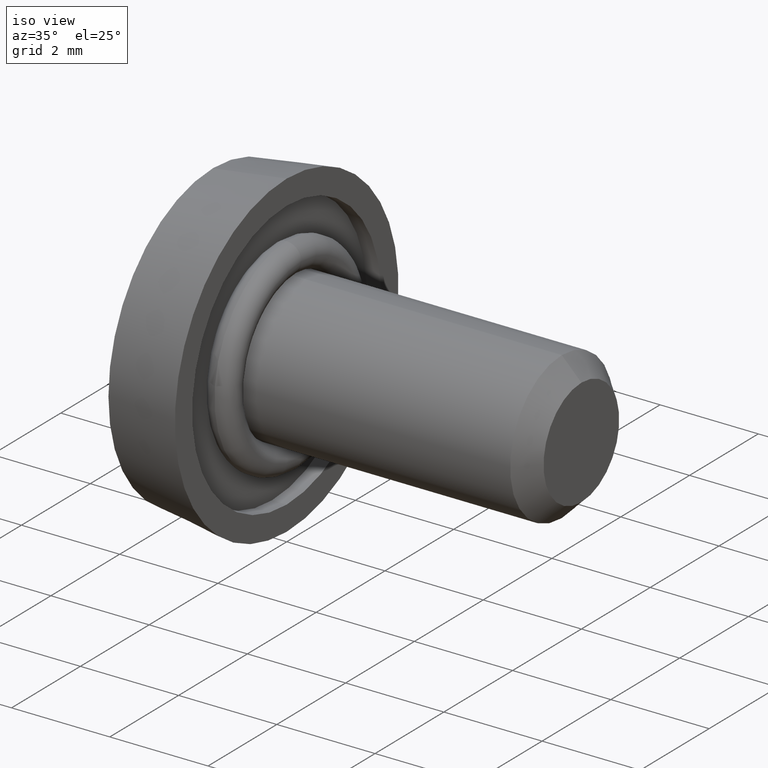
[diagram: clean part render]
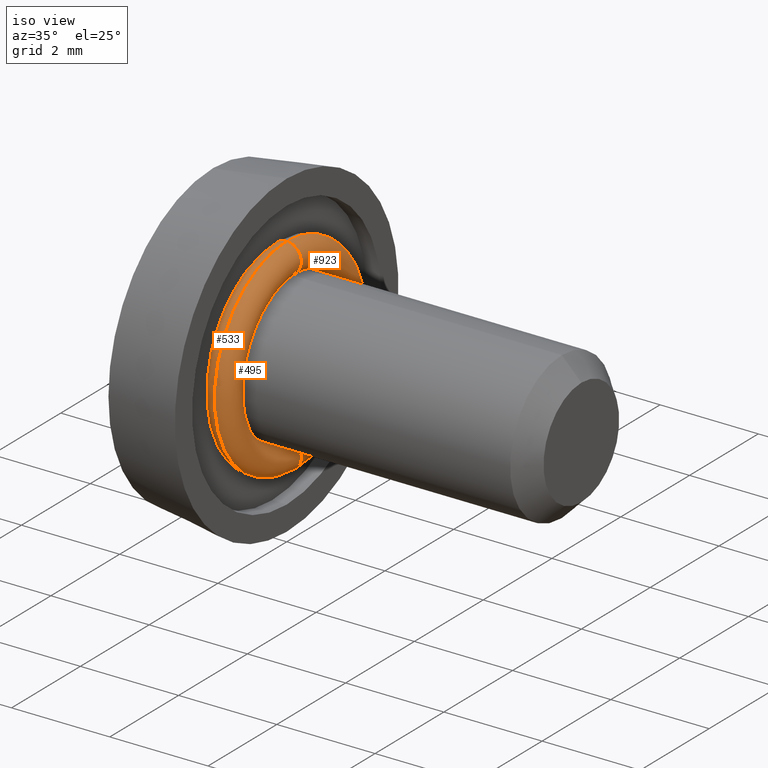
[diagram: same view with one multi-face feature highlighted, each face labeled with its STEP entity id]
A machine part, iso view. The highlighted faces form ONE feature: a constant-radius fillet chain: 3 tangent blend faces with common blend radius 0.3 mm. The faces share edges in the B-rep.
Their STEP definitions:
[1] entity #923 (Torus):
#16 = DIRECTION ( 'NONE',  ( 0.0000000000000000000, 0.0000000000000000000, -1.000000000000000000 ) ) ;
#51 = EDGE_CURVE ( 'NONE', #193, #249, #1197, .T. ) ;
#58 = ORIENTED_EDGE ( 'NONE', *, *, #455, .F. ) ;
#81 = CARTESIAN_POINT ( 'NONE',  ( 0.0000000000000000000, 0.0000000000000000000, -1.800000000000000000 ) ) ;
#163 = CARTESIAN_POINT ( 'NONE',  ( -3.673940397442058300E-017, 0.0000000000000000000, 0.0000000000000000000 ) ) ;
#189 = VERTEX_POINT ( 'NONE', #278 ) ;
#193 = VERTEX_POINT ( 'NONE', #744 ) ;
#205 = DIRECTION ( 'NONE',  ( 1.000000000000000000, -0.0000000000000000000, -0.0000000000000000000 ) ) ;
#235 = AXIS2_PLACEMENT_3D ( 'NONE', #1188, #205, #16 ) ;
#249 = VERTEX_POINT ( 'NONE', #286 ) ;
#278 = CARTESIAN_POINT ( 'NONE',  ( 0.0000000000000000000, 0.0000000000000000000, -2.100000000000000100 ) ) ;
#286 = CARTESIAN_POINT ( 'NONE',  ( -3.673940397442057600E-017, 1.836970198721029700E-016, 1.500000000000000000 ) ) ;
#332 = DIRECTION ( 'NONE',  ( 0.0000000000000000000, 1.224646799147353200E-016, 1.000000000000000000 ) ) ;
#348 = ORIENTED_EDGE ( 'NONE', *, *, #51, .F. ) ;
#455 = EDGE_CURVE ( 'NONE', #189, #193, #782, .T. ) ;
#469 = CIRCLE ( 'NONE', #235, 2.100000000000000100 ) ;
#486 = DIRECTION ( 'NONE',  ( 0.0000000000000000000, 0.0000000000000000000, -1.000000000000000000 ) ) ;
#562 = EDGE_CURVE ( 'NONE', #189, #1091, #469, .T. ) ;
#590 = CIRCLE ( 'NONE', #804, 0.2999999999999999300 ) ;
#623 = ORIENTED_EDGE ( 'NONE', *, *, #1173, .T. ) ;
#693 = DIRECTION ( 'NONE',  ( -0.0000000000000000000, -1.000000000000000000, -0.0000000000000000000 ) ) ;
#696 = EDGE_LOOP ( 'NONE', ( #58, #849, #623, #348 ) ) ;
#719 = CARTESIAN_POINT ( 'NONE',  ( 0.0000000000000000000, 2.571758278209441500E-016, 2.100000000000000100 ) ) ;
#737 = DIRECTION ( 'NONE',  ( 1.000000000000000000, -0.0000000000000000000, -0.0000000000000000000 ) ) ;
#744 = CARTESIAN_POINT ( 'NONE',  ( -3.673940397442057600E-017, 0.0000000000000000000, -1.500000000000000000 ) ) ;
#782 = CIRCLE ( 'NONE', #968, 0.2999999999999999300 ) ;
#788 = FACE_OUTER_BOUND ( 'NONE', #696, .T. ) ;
#804 = AXIS2_PLACEMENT_3D ( 'NONE', #1128, #941, #332 ) ;
#811 = AXIS2_PLACEMENT_3D ( 'NONE', #163, #981, #1126 ) ;
#840 = DIRECTION ( 'NONE',  ( 0.0000000000000000000, 0.0000000000000000000, -1.000000000000000000 ) ) ;
#849 = ORIENTED_EDGE ( 'NONE', *, *, #562, .T. ) ;
#923 = ADVANCED_FACE ( 'NONE', ( #788 ), #1042, .T. ) ;
#941 = DIRECTION ( 'NONE',  ( 0.0000000000000000000, 1.000000000000000000, -1.224646799147353200E-016 ) ) ;
#968 = AXIS2_PLACEMENT_3D ( 'NONE', #81, #693, #486 ) ;
#981 = DIRECTION ( 'NONE',  ( 1.000000000000000000, -0.0000000000000000000, -0.0000000000000000000 ) ) ;
#1042 = TOROIDAL_SURFACE ( 'NONE', #1146, 1.800000000000000000, 0.2999999999999998800 ) ;
#1091 = VERTEX_POINT ( 'NONE', #719 ) ;
#1126 = DIRECTION ( 'NONE',  ( 0.0000000000000000000, 0.0000000000000000000, -1.000000000000000000 ) ) ;
#1128 = CARTESIAN_POINT ( 'NONE',  ( 0.0000000000000000000, 2.204364238465235600E-016, 1.800000000000000000 ) ) ;
#1146 = AXIS2_PLACEMENT_3D ( 'NONE', #1203, #737, #840 ) ;
#1173 = EDGE_CURVE ( 'NONE', #1091, #249, #590, .T. ) ;
#1188 = CARTESIAN_POINT ( 'NONE',  ( 0.0000000000000000000, 0.0000000000000000000, 0.0000000000000000000 ) ) ;
#1197 = CIRCLE ( 'NONE', #811, 1.500000000000000000 ) ;
#1203 = CARTESIAN_POINT ( 'NONE',  ( 0.0000000000000000000, 0.0000000000000000000, 0.0000000000000000000 ) ) ;
[2] entity #495 (Torus):
#78 = AXIS2_PLACEMENT_3D ( 'NONE', #642, #529, #221 ) ;
#81 = CARTESIAN_POINT ( 'NONE',  ( 0.0000000000000000000, 0.0000000000000000000, -1.800000000000000000 ) ) ;
#99 = DIRECTION ( 'NONE',  ( 1.000000000000000000, -0.0000000000000000000, -0.0000000000000000000 ) ) ;
#143 = CARTESIAN_POINT ( 'NONE',  ( 0.0000000000000000000, 0.0000000000000000000, 0.0000000000000000000 ) ) ;
#189 = VERTEX_POINT ( 'NONE', #278 ) ;
#193 = VERTEX_POINT ( 'NONE', #744 ) ;
#221 = DIRECTION ( 'NONE',  ( 0.0000000000000000000, 0.0000000000000000000, -1.000000000000000000 ) ) ;
#242 = TOROIDAL_SURFACE ( 'NONE', #1217, 1.800000000000000000, 0.2999999999999998800 ) ;
#249 = VERTEX_POINT ( 'NONE', #286 ) ;
#278 = CARTESIAN_POINT ( 'NONE',  ( 0.0000000000000000000, 0.0000000000000000000, -2.100000000000000100 ) ) ;
#286 = CARTESIAN_POINT ( 'NONE',  ( -3.673940397442057600E-017, 1.836970198721029700E-016, 1.500000000000000000 ) ) ;
#307 = DIRECTION ( 'NONE',  ( 1.000000000000000000, -0.0000000000000000000, -0.0000000000000000000 ) ) ;
#332 = DIRECTION ( 'NONE',  ( 0.0000000000000000000, 1.224646799147353200E-016, 1.000000000000000000 ) ) ;
#359 = FACE_OUTER_BOUND ( 'NONE', #685, .T. ) ;
#384 = ORIENTED_EDGE ( 'NONE', *, *, #455, .T. ) ;
#455 = EDGE_CURVE ( 'NONE', #189, #193, #782, .T. ) ;
#486 = DIRECTION ( 'NONE',  ( 0.0000000000000000000, 0.0000000000000000000, -1.000000000000000000 ) ) ;
#495 = ADVANCED_FACE ( 'NONE', ( #359 ), #242, .T. ) ;
#502 = ORIENTED_EDGE ( 'NONE', *, *, #823, .F. ) ;
#529 = DIRECTION ( 'NONE',  ( 1.000000000000000000, -0.0000000000000000000, -0.0000000000000000000 ) ) ;
#590 = CIRCLE ( 'NONE', #804, 0.2999999999999999300 ) ;
#642 = CARTESIAN_POINT ( 'NONE',  ( 0.0000000000000000000, 0.0000000000000000000, 0.0000000000000000000 ) ) ;
#667 = CIRCLE ( 'NONE', #78, 2.100000000000000100 ) ;
#675 = ORIENTED_EDGE ( 'NONE', *, *, #1173, .F. ) ;
#685 = EDGE_LOOP ( 'NONE', ( #675, #1182, #384, #502 ) ) ;
#693 = DIRECTION ( 'NONE',  ( -0.0000000000000000000, -1.000000000000000000, -0.0000000000000000000 ) ) ;
#719 = CARTESIAN_POINT ( 'NONE',  ( 0.0000000000000000000, 2.571758278209441500E-016, 2.100000000000000100 ) ) ;
#722 = CIRCLE ( 'NONE', #1170, 1.500000000000000000 ) ;
#744 = CARTESIAN_POINT ( 'NONE',  ( -3.673940397442057600E-017, 0.0000000000000000000, -1.500000000000000000 ) ) ;
#772 = CARTESIAN_POINT ( 'NONE',  ( -3.673940397442058300E-017, 0.0000000000000000000, 0.0000000000000000000 ) ) ;
#782 = CIRCLE ( 'NONE', #968, 0.2999999999999999300 ) ;
#804 = AXIS2_PLACEMENT_3D ( 'NONE', #1128, #941, #332 ) ;
#822 = DIRECTION ( 'NONE',  ( 0.0000000000000000000, 0.0000000000000000000, -1.000000000000000000 ) ) ;
#823 = EDGE_CURVE ( 'NONE', #249, #193, #722, .T. ) ;
#841 = EDGE_CURVE ( 'NONE', #1091, #189, #667, .T. ) ;
#941 = DIRECTION ( 'NONE',  ( 0.0000000000000000000, 1.000000000000000000, -1.224646799147353200E-016 ) ) ;
#968 = AXIS2_PLACEMENT_3D ( 'NONE', #81, #693, #486 ) ;
#1091 = VERTEX_POINT ( 'NONE', #719 ) ;
#1128 = CARTESIAN_POINT ( 'NONE',  ( 0.0000000000000000000, 2.204364238465235600E-016, 1.800000000000000000 ) ) ;
#1165 = DIRECTION ( 'NONE',  ( 0.0000000000000000000, 0.0000000000000000000, -1.000000000000000000 ) ) ;
#1170 = AXIS2_PLACEMENT_3D ( 'NONE', #772, #99, #822 ) ;
#1173 = EDGE_CURVE ( 'NONE', #1091, #249, #590, .T. ) ;
#1182 = ORIENTED_EDGE ( 'NONE', *, *, #841, .T. ) ;
#1217 = AXIS2_PLACEMENT_3D ( 'NONE', #143, #307, #1165 ) ;
[3] entity #533 (Torus):
#53 = AXIS2_PLACEMENT_3D ( 'NONE', #146, #503, #963 ) ;
#78 = AXIS2_PLACEMENT_3D ( 'NONE', #642, #529, #221 ) ;
#85 = EDGE_CURVE ( 'NONE', #193, #189, #1019, .T. ) ;
#99 = DIRECTION ( 'NONE',  ( 1.000000000000000000, -0.0000000000000000000, -0.0000000000000000000 ) ) ;
#146 = CARTESIAN_POINT ( 'NONE',  ( 0.0000000000000000000, 2.204364238465235600E-016, 1.800000000000000000 ) ) ;
#180 = AXIS2_PLACEMENT_3D ( 'NONE', #448, #460, #967 ) ;
#189 = VERTEX_POINT ( 'NONE', #278 ) ;
#193 = VERTEX_POINT ( 'NONE', #744 ) ;
#213 = FACE_OUTER_BOUND ( 'NONE', #553, .T. ) ;
#221 = DIRECTION ( 'NONE',  ( 0.0000000000000000000, 0.0000000000000000000, -1.000000000000000000 ) ) ;
#249 = VERTEX_POINT ( 'NONE', #286 ) ;
#278 = CARTESIAN_POINT ( 'NONE',  ( 0.0000000000000000000, 0.0000000000000000000, -2.100000000000000100 ) ) ;
#286 = CARTESIAN_POINT ( 'NONE',  ( -3.673940397442057600E-017, 1.836970198721029700E-016, 1.500000000000000000 ) ) ;
#387 = DIRECTION ( 'NONE',  ( 0.0000000000000000000, 0.0000000000000000000, -1.000000000000000000 ) ) ;
#448 = CARTESIAN_POINT ( 'NONE',  ( 0.0000000000000000000, 0.0000000000000000000, 0.0000000000000000000 ) ) ;
#460 = DIRECTION ( 'NONE',  ( 1.000000000000000000, -0.0000000000000000000, -0.0000000000000000000 ) ) ;
#478 = ORIENTED_EDGE ( 'NONE', *, *, #823, .T. ) ;
#503 = DIRECTION ( 'NONE',  ( 0.0000000000000000000, 1.000000000000000000, -1.224646799147353200E-016 ) ) ;
#521 = EDGE_CURVE ( 'NONE', #249, #1091, #725, .T. ) ;
#529 = DIRECTION ( 'NONE',  ( 1.000000000000000000, -0.0000000000000000000, -0.0000000000000000000 ) ) ;
#533 = ADVANCED_FACE ( 'NONE', ( #213 ), #638, .T. ) ;
#553 = EDGE_LOOP ( 'NONE', ( #925, #1110, #478, #778 ) ) ;
#638 = TOROIDAL_SURFACE ( 'NONE', #180, 1.800000000000000000, 0.2999999999999998800 ) ;
#642 = CARTESIAN_POINT ( 'NONE',  ( 0.0000000000000000000, 0.0000000000000000000, 0.0000000000000000000 ) ) ;
#667 = CIRCLE ( 'NONE', #78, 2.100000000000000100 ) ;
#719 = CARTESIAN_POINT ( 'NONE',  ( 0.0000000000000000000, 2.571758278209441500E-016, 2.100000000000000100 ) ) ;
#722 = CIRCLE ( 'NONE', #1170, 1.500000000000000000 ) ;
#725 = CIRCLE ( 'NONE', #53, 0.2999999999999999300 ) ;
#744 = CARTESIAN_POINT ( 'NONE',  ( -3.673940397442057600E-017, 0.0000000000000000000, -1.500000000000000000 ) ) ;
#772 = CARTESIAN_POINT ( 'NONE',  ( -3.673940397442058300E-017, 0.0000000000000000000, 0.0000000000000000000 ) ) ;
#778 = ORIENTED_EDGE ( 'NONE', *, *, #85, .T. ) ;
#822 = DIRECTION ( 'NONE',  ( 0.0000000000000000000, 0.0000000000000000000, -1.000000000000000000 ) ) ;
#823 = EDGE_CURVE ( 'NONE', #249, #193, #722, .T. ) ;
#841 = EDGE_CURVE ( 'NONE', #1091, #189, #667, .T. ) ;
#925 = ORIENTED_EDGE ( 'NONE', *, *, #841, .F. ) ;
#946 = AXIS2_PLACEMENT_3D ( 'NONE', #1016, #1209, #387 ) ;
#963 = DIRECTION ( 'NONE',  ( 0.0000000000000000000, 1.224646799147353200E-016, 1.000000000000000000 ) ) ;
#967 = DIRECTION ( 'NONE',  ( 0.0000000000000000000, 0.0000000000000000000, -1.000000000000000000 ) ) ;
#1016 = CARTESIAN_POINT ( 'NONE',  ( 0.0000000000000000000, 0.0000000000000000000, -1.800000000000000000 ) ) ;
#1019 = CIRCLE ( 'NONE', #946, 0.2999999999999999300 ) ;
#1091 = VERTEX_POINT ( 'NONE', #719 ) ;
#1110 = ORIENTED_EDGE ( 'NONE', *, *, #521, .F. ) ;
#1170 = AXIS2_PLACEMENT_3D ( 'NONE', #772, #99, #822 ) ;
#1209 = DIRECTION ( 'NONE',  ( -0.0000000000000000000, -1.000000000000000000, -0.0000000000000000000 ) ) ;